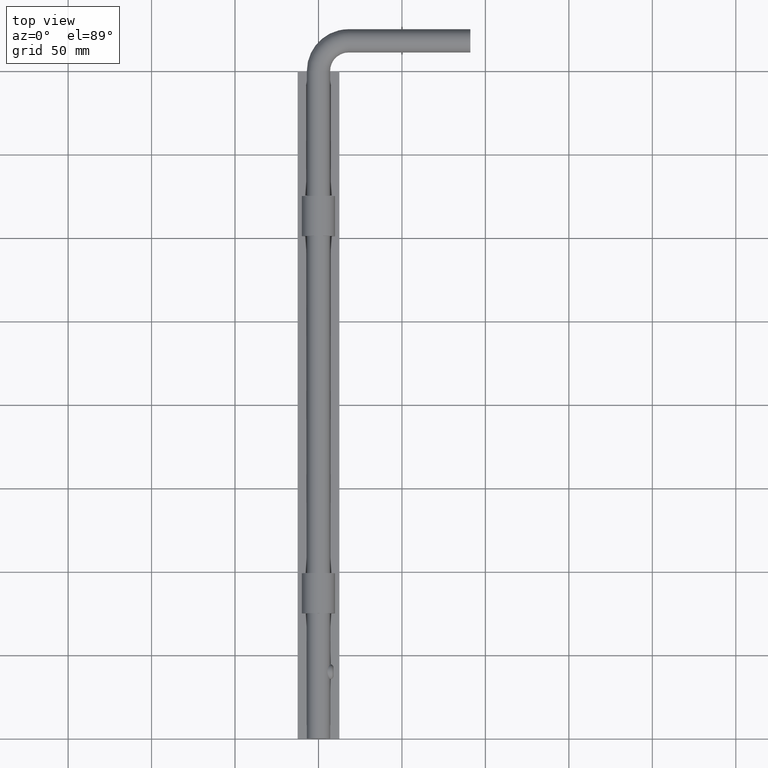
[diagram: clean part render]
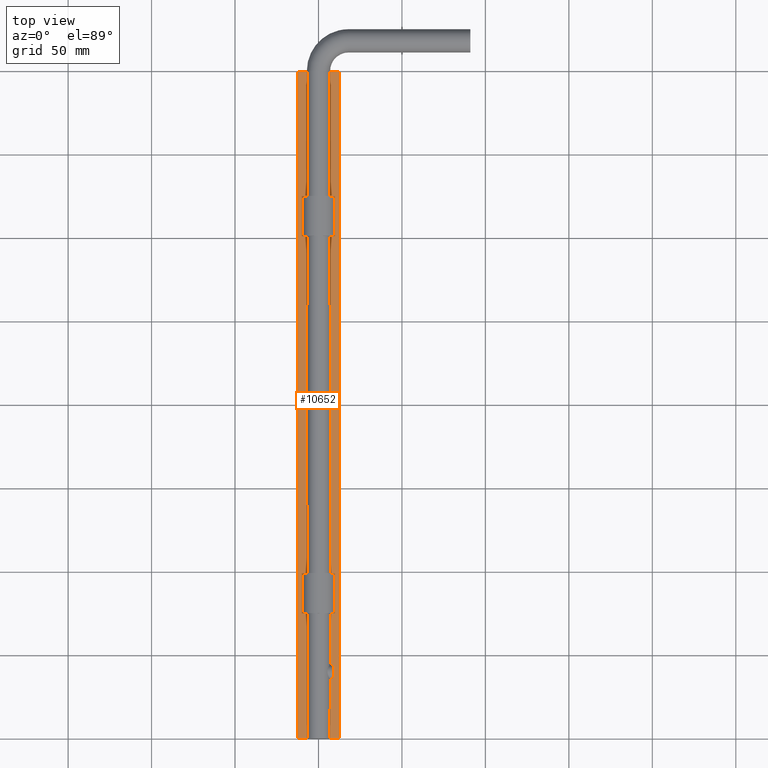
[diagram: same view with one face highlighted and labeled with its STEP entity id]
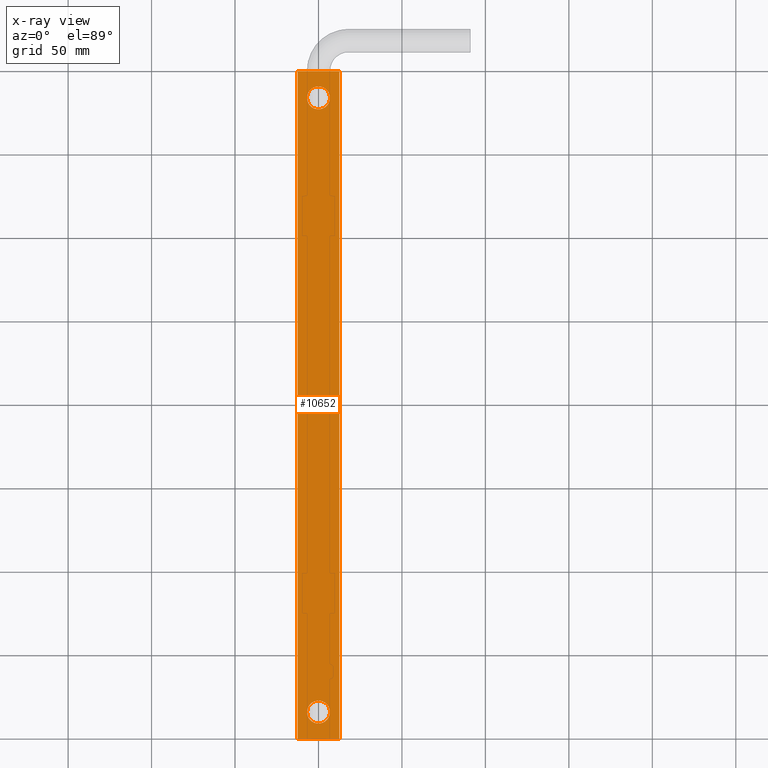
[diagram: x-ray of the same camera — body ghosted, the highlighted face saturated]
A machine part, top view. The second image highlights one B-rep face of the part: STEP entity #10652.
The next image is the same camera in x-ray: the body ghosted, the highlighted face saturated — about 0% of this face is hidden behind the body in this view.
In plain terms, the highlighted planar face has unit normal (-0, 0, 1).
Its self-contained STEP definition (entity closure, byte-faithful):
#24 = AXIS2_PLACEMENT_3D ( 'NONE', #7317, #1545, #8269 ) ;
#55 = ORIENTED_EDGE ( 'NONE', *, *, #4877, .T. ) ;
#218 = EDGE_CURVE ( 'NONE', #8343, #1685, #6064, .T. ) ;
#420 = CARTESIAN_POINT ( 'NONE',  ( 12.49999999999995559, 200.0000000000000853, 6.500000000000000000 ) ) ;
#613 = CARTESIAN_POINT ( 'NONE',  ( 6.875000000000185629, -184.0000000000000000, 6.500000000000000000 ) ) ;
#1029 = CARTESIAN_POINT ( 'NONE',  ( -12.50000000000003908, 200.0000000000000853, 6.500000000000000000 ) ) ;
#1439 = FACE_OUTER_BOUND ( 'NONE', #8539, .T. ) ;
#1526 = EDGE_LOOP ( 'NONE', ( #55 ) ) ;
#1545 = DIRECTION ( 'NONE',  ( 0.000000000000000000, -0.000000000000000000, -1.000000000000000000 ) ) ;
#1638 = EDGE_CURVE ( 'NONE', #12362, #8343, #2734, .T. ) ;
#1655 = ORIENTED_EDGE ( 'NONE', *, *, #6202, .T. ) ;
#1685 = VERTEX_POINT ( 'NONE', #9985 ) ;
#1797 = ORIENTED_EDGE ( 'NONE', *, *, #6083, .T. ) ;
#2734 = LINE ( 'NONE', #2797, #6810 ) ;
#2797 = CARTESIAN_POINT ( 'NONE',  ( -12.50000000000003908, 200.0000000000000853, 6.500000000000000000 ) ) ;
#3375 = FACE_BOUND ( 'NONE', #1526, .T. ) ;
#3656 = DIRECTION ( 'NONE',  ( 0.000000000000000000, -0.000000000000000000, -1.000000000000000000 ) ) ;
#3877 = DIRECTION ( 'NONE',  ( -1.000000000000000000, -0.000000000000000000, -0.000000000000000000 ) ) ;
#4363 = CARTESIAN_POINT ( 'NONE',  ( -12.49999999999998401, -199.9999999999999716, 6.500000000000000000 ) ) ;
#4518 = ORIENTED_EDGE ( 'NONE', *, *, #218, .T. ) ;
#4828 = VERTEX_POINT ( 'NONE', #420 ) ;
#4877 = EDGE_CURVE ( 'NONE', #7740, #7740, #8700, .T. ) ;
#4967 = DIRECTION ( 'NONE',  ( -0.000000000000000000, 0.000000000000000000, 1.000000000000000000 ) ) ;
#5215 = CIRCLE ( 'NONE', #11868, 6.875000000000185629 ) ;
#5609 = LINE ( 'NONE', #9510, #11769 ) ;
#5798 = CARTESIAN_POINT ( 'NONE',  ( -12.50000000000003908, 200.0000000000000853, 6.500000000000000000 ) ) ;
#6064 = LINE ( 'NONE', #9649, #7130 ) ;
#6083 = EDGE_CURVE ( 'NONE', #7432, #7432, #5215, .T. ) ;
#6202 = EDGE_CURVE ( 'NONE', #4828, #12362, #11065, .T. ) ;
#6810 = VECTOR ( 'NONE', #11479, 1000.000000000000000 ) ;
#7064 = ORIENTED_EDGE ( 'NONE', *, *, #11587, .T. ) ;
#7130 = VECTOR ( 'NONE', #11617, 1000.000000000000000 ) ;
#7317 = CARTESIAN_POINT ( 'NONE',  ( 0.000000000000000000, -184.0000000000000000, 6.500000000000000000 ) ) ;
#7432 = VERTEX_POINT ( 'NONE', #12045 ) ;
#7539 = DIRECTION ( 'NONE',  ( 1.000000000000000000, 0.000000000000000000, 0.000000000000000000 ) ) ;
#7673 = DIRECTION ( 'NONE',  ( 1.000000000000000000, 0.000000000000000000, 0.000000000000000000 ) ) ;
#7740 = VERTEX_POINT ( 'NONE', #613 ) ;
#7791 = EDGE_LOOP ( 'NONE', ( #1797 ) ) ;
#8235 = VECTOR ( 'NONE', #3877, 1000.000000000000000 ) ;
#8269 = DIRECTION ( 'NONE',  ( 1.000000000000000000, 0.000000000000000000, 0.000000000000000000 ) ) ;
#8343 = VERTEX_POINT ( 'NONE', #4363 ) ;
#8539 = EDGE_LOOP ( 'NONE', ( #7064, #1655, #11934, #4518 ) ) ;
#8549 = DIRECTION ( 'NONE',  ( -1.387778780781445429E-16, 1.000000000000000000, -0.000000000000000000 ) ) ;
#8700 = CIRCLE ( 'NONE', #24, 6.875000000000185629 ) ;
#9492 = CARTESIAN_POINT ( 'NONE',  ( 0.000000000000000000, 184.0000000000000853, 6.500000000000000000 ) ) ;
#9510 = CARTESIAN_POINT ( 'NONE',  ( 12.49999999999995559, 200.0000000000000853, 6.500000000000000000 ) ) ;
#9649 = CARTESIAN_POINT ( 'NONE',  ( -12.49999999999998401, -199.9999999999999716, 6.500000000000000000 ) ) ;
#9985 = CARTESIAN_POINT ( 'NONE',  ( 12.50000000000001066, -199.9999999999999716, 6.500000000000000000 ) ) ;
#10435 = FACE_BOUND ( 'NONE', #7791, .T. ) ;
#10536 = CARTESIAN_POINT ( 'NONE',  ( 0.000000000000000000, 0.000000000000000000, 6.500000000000000000 ) ) ;
#10652 = ADVANCED_FACE ( 'NONE', ( #3375, #10435, #1439 ), #10708, .T. ) ;
#10708 = PLANE ( 'NONE',  #12057 ) ;
#11065 = LINE ( 'NONE', #1029, #8235 ) ;
#11479 = DIRECTION ( 'NONE',  ( 1.387778780781445429E-16, -1.000000000000000000, 0.000000000000000000 ) ) ;
#11587 = EDGE_CURVE ( 'NONE', #1685, #4828, #5609, .T. ) ;
#11617 = DIRECTION ( 'NONE',  ( 1.000000000000000000, 0.000000000000000000, 0.000000000000000000 ) ) ;
#11769 = VECTOR ( 'NONE', #8549, 1000.000000000000000 ) ;
#11868 = AXIS2_PLACEMENT_3D ( 'NONE', #9492, #3656, #7539 ) ;
#11934 = ORIENTED_EDGE ( 'NONE', *, *, #1638, .T. ) ;
#12045 = CARTESIAN_POINT ( 'NONE',  ( 6.875000000000185629, 184.0000000000000853, 6.500000000000000000 ) ) ;
#12057 = AXIS2_PLACEMENT_3D ( 'NONE', #10536, #4967, #7673 ) ;
#12362 = VERTEX_POINT ( 'NONE', #5798 ) ;